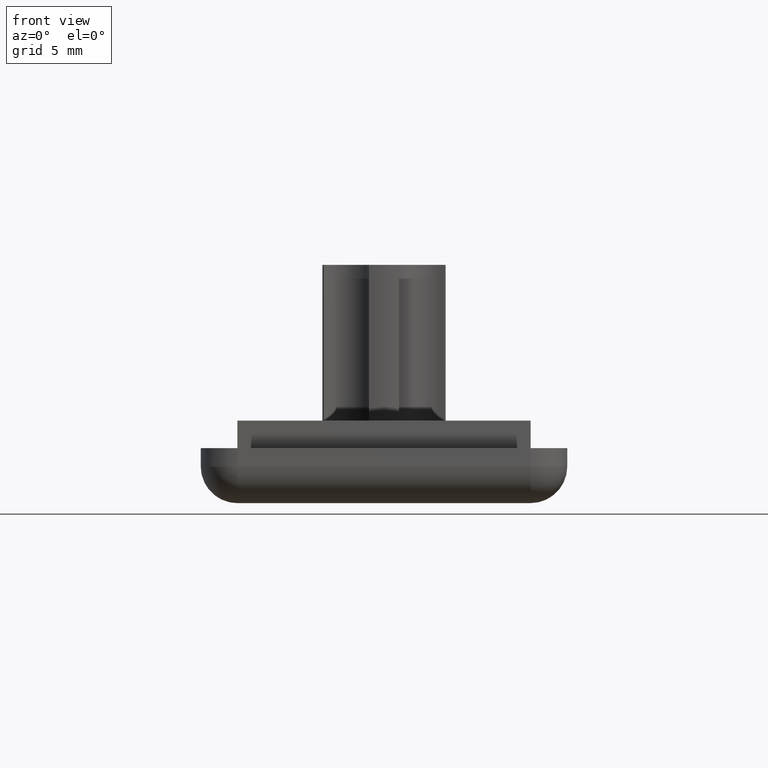
[diagram: clean part render]
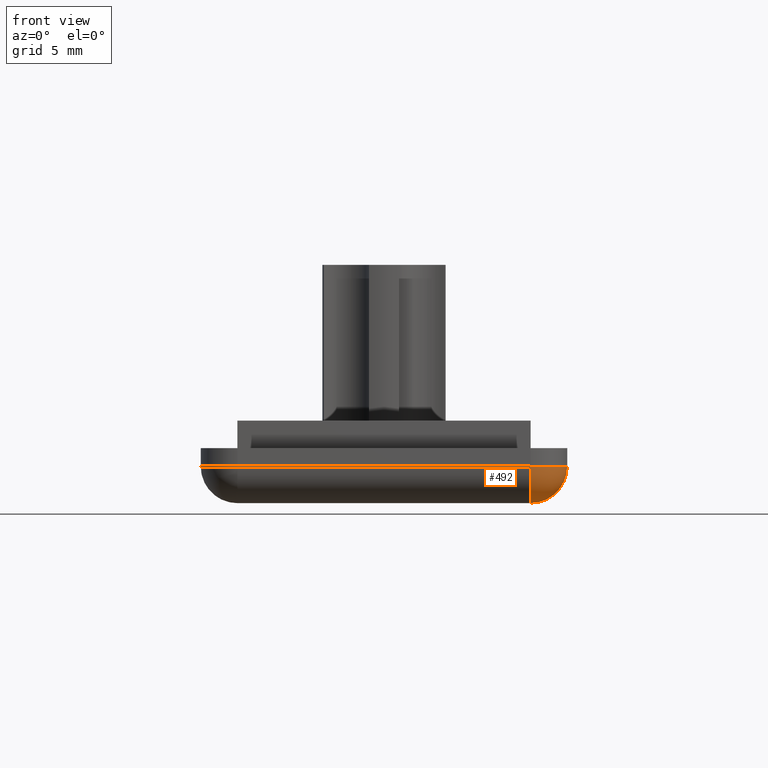
[diagram: same view with one face highlighted and labeled with its STEP entity id]
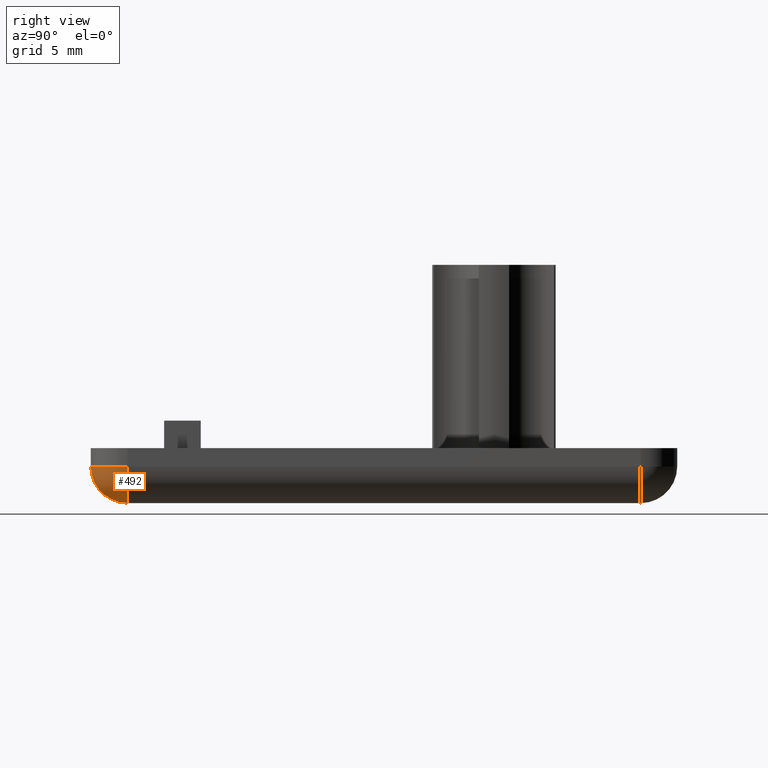
[diagram: same view with one face highlighted and labeled with its STEP entity id]
A machine part, front view. The second image highlights one B-rep face of the part: STEP entity #492.
A second angle (right view) of the same face is appended — the face is thin or edge-on in the first view.
In plain terms, the highlighted spherical surface has radius 2 mm.
Its self-contained STEP definition (entity closure, byte-faithful):
#31=SPHERICAL_SURFACE('',#537,2.);
#39=FACE_OUTER_BOUND('',#70,.T.);
#70=EDGE_LOOP('',(#348,#349,#350));
#184=CIRCLE('',#531,2.);
#186=CIRCLE('',#535,2.);
#188=CIRCLE('',#538,2.);
#218=VERTEX_POINT('',#778);
#219=VERTEX_POINT('',#780);
#220=VERTEX_POINT('',#786);
#265=EDGE_CURVE('',#218,#219,#184,.T.);
#268=EDGE_CURVE('',#220,#218,#186,.T.);
#272=EDGE_CURVE('',#220,#219,#188,.T.);
#348=ORIENTED_EDGE('',*,*,#268,.F.);
#349=ORIENTED_EDGE('',*,*,#272,.T.);
#350=ORIENTED_EDGE('',*,*,#265,.F.);
#492=ADVANCED_FACE('',(#39),#31,.T.);
#531=AXIS2_PLACEMENT_3D('',#781,#612,#613);
#535=AXIS2_PLACEMENT_3D('',#787,#621,#622);
#537=AXIS2_PLACEMENT_3D('',#792,#627,#628);
#538=AXIS2_PLACEMENT_3D('',#793,#629,#630);
#612=DIRECTION('center_axis',(-1.,1.11022302462516E-015,0.));
#613=DIRECTION('ref_axis',(0.,0.,-1.));
#621=DIRECTION('center_axis',(1.11022302462516E-015,1.,0.));
#622=DIRECTION('ref_axis',(1.,-1.11022302462516E-015,0.));
#627=DIRECTION('center_axis',(-0.816496580927728,-0.408248290463861,-0.40824829046386));
#628=DIRECTION('ref_axis',(0.577350269189622,-0.577350269189628,-0.577350269189627));
#629=DIRECTION('center_axis',(0.,0.,-1.));
#630=DIRECTION('ref_axis',(-4.9960036108132E-015,-1.,0.));
#778=CARTESIAN_POINT('',(7.99999999999997,-20.,0.));
#780=CARTESIAN_POINT('',(7.99999999999997,-22.,2.));
#781=CARTESIAN_POINT('Origin',(7.99999999999997,-20.,2.));
#786=CARTESIAN_POINT('',(9.99999999999998,-20.,2.));
#787=CARTESIAN_POINT('Origin',(7.99999999999998,-20.,2.));
#792=CARTESIAN_POINT('Origin',(7.99999999999998,-20.,2.));
#793=CARTESIAN_POINT('Origin',(7.99999999999998,-20.,2.));